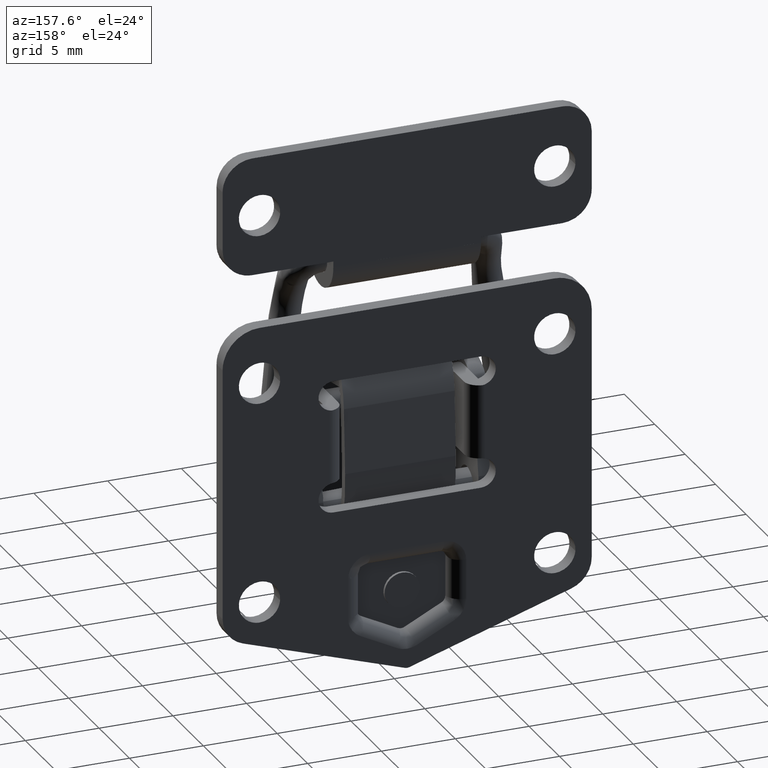
[diagram: clean part render]
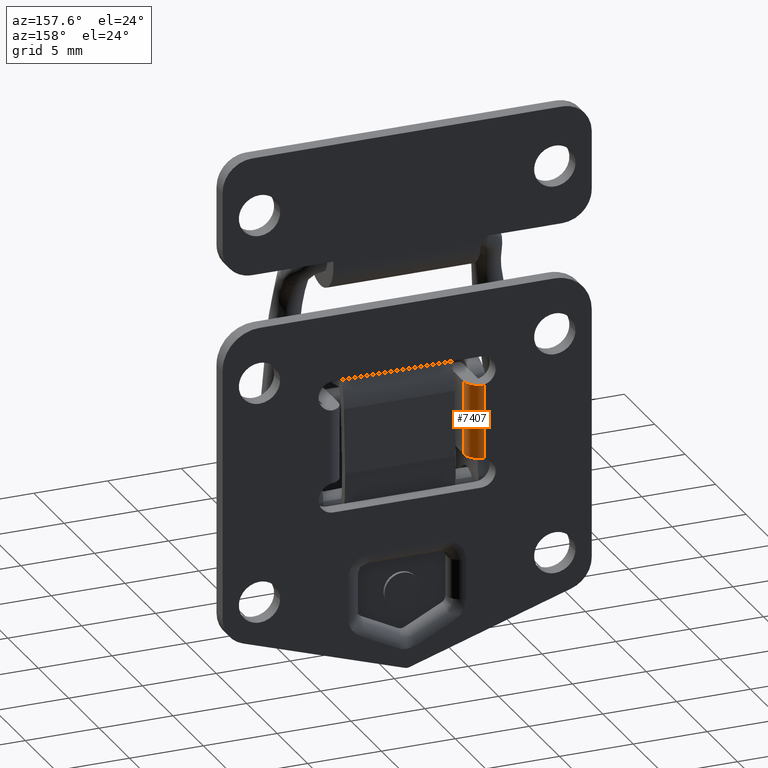
[diagram: same view with one face highlighted and labeled with its STEP entity id]
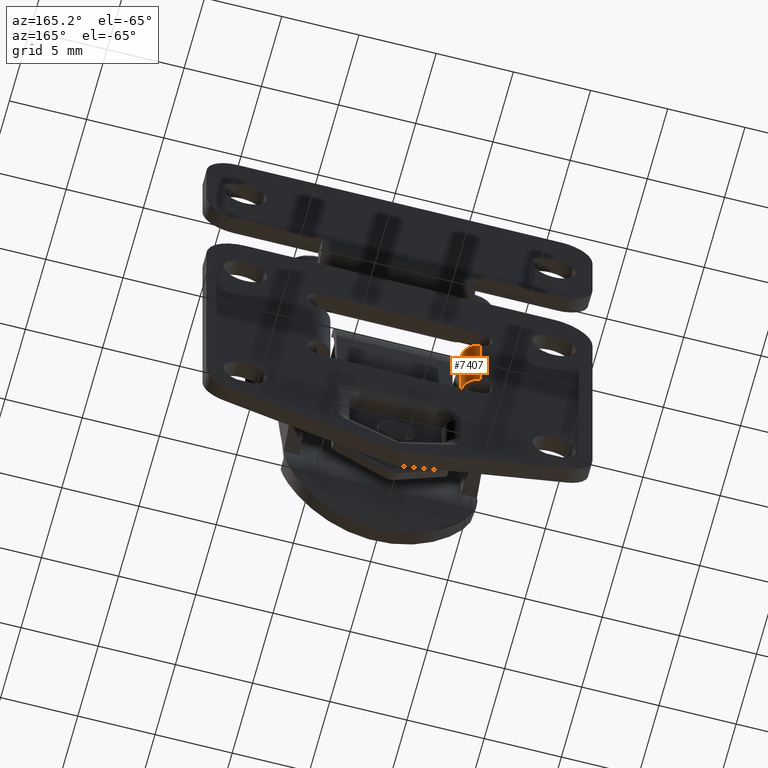
[diagram: same view with one face highlighted and labeled with its STEP entity id]
A machine part, auxiliary view. The second image highlights one B-rep face of the part: STEP entity #7407.
A second angle (auxiliary view) of the same face is appended — the face is thin or edge-on in the first view.
In plain terms, the highlighted face is a freeform B-spline surface patch.
Its self-contained STEP definition (entity closure, byte-faithful):
#7329=CARTESIAN_POINT('',(1.073823051692227,4.250342675024443,-9.541658128379483));
#7330=CARTESIAN_POINT('',(1.073823051692227,4.250342675024443,-14.861506564324859));
#7331=CARTESIAN_POINT('',(2.174984799326511,4.221507739865904,-9.541658128379485));
#7332=CARTESIAN_POINT('',(2.174984799326511,4.221507739865904,-14.861506564324857));
#7333=CARTESIAN_POINT('',(2.097524479458983,5.320320074518463,-9.541658128379483));
#7334=CARTESIAN_POINT('',(2.097524479458983,5.320320074518463,-14.861506564324857));
#7342=(BOUNDED_SURFACE()B_SPLINE_SURFACE(1,2,((#7329,#7331,#7333),(#7330,#7332,#7334)),.UNSPECIFIED.,.F.,.F.,.U.)B_SPLINE_SURFACE_WITH_KNOTS((2,2),(3,3),(0.0,5.319848435945374),(0.0,0.994518631589878),.UNSPECIFIED.)GEOMETRIC_REPRESENTATION_ITEM()RATIONAL_B_SPLINE_SURFACE(((1.0,0.670944223401039,0.996392648121965),(1.0,0.670944223401039,0.996392648121965)))REPRESENTATION_ITEM('')SURFACE());
#7343=CARTESIAN_POINT('',(2.100000000000100,5.250000000000000,-14.731754163448141));
#7344=VERTEX_POINT('',#7343);
#7345=CARTESIAN_POINT('',(2.068245836551965,5.000000000000060,-14.699999999999999));
#7346=VERTEX_POINT('',#7345);
#7347=CARTESIAN_POINT('',(2.100000000000110,5.250000000000000,-14.731754163448141));
#7348=CARTESIAN_POINT('',(2.100000000000110,5.166709358102785,-14.710248612183960));
#7349=CARTESIAN_POINT('',(2.089751387816154,5.083290641897276,-14.699999999999999));
#7350=CARTESIAN_POINT('',(2.068245836551970,5.000000000000060,-14.699999999999999));
#7351=QUASI_UNIFORM_CURVE('',3,(#7347,#7348,#7349,#7350),.UNSPECIFIED.,.F.,.U.);
#7352=EDGE_CURVE('',#7344,#7346,#7351,.T.);
#7353=ORIENTED_EDGE('',*,*,#7352,.F.);
#7354=CARTESIAN_POINT('',(2.100000000000100,5.250000000000000,-9.668245836551890));
#7355=VERTEX_POINT('',#7354);
#7356=CARTESIAN_POINT('',(2.100000000000100,5.250000000000000,-9.668245836551890));
#7357=CARTESIAN_POINT('',(2.100000000000100,5.250000000000000,-14.731754163448141));
#7358=QUASI_UNIFORM_CURVE('',1,(#7356,#7357),.UNSPECIFIED.,.F.,.U.);
#7359=EDGE_CURVE('',#7355,#7344,#7358,.T.);
#7360=ORIENTED_EDGE('',*,*,#7359,.F.);
#7361=CARTESIAN_POINT('',(2.068245836551965,5.000000000000060,-9.700000000000001));
#7362=VERTEX_POINT('',#7361);
#7363=CARTESIAN_POINT('',(2.068245836551970,5.000000000000060,-9.700000000000001));
#7364=CARTESIAN_POINT('',(2.089751387816153,5.083290641897273,-9.700000000000001));
#7365=CARTESIAN_POINT('',(2.100000000000100,5.166709358102786,-9.689751387816072));
#7366=CARTESIAN_POINT('',(2.100000000000100,5.250000000000000,-9.668245836551890));
#7367=QUASI_UNIFORM_CURVE('',3,(#7363,#7364,#7365,#7366),.UNSPECIFIED.,.F.,.U.);
#7368=EDGE_CURVE('',#7362,#7355,#7367,.T.);
#7369=ORIENTED_EDGE('',*,*,#7368,.F.);
#7370=CARTESIAN_POINT('',(1.100000000000100,4.250000000000000,-9.700000000000001));
#7371=VERTEX_POINT('',#7370);
#7372=CARTESIAN_POINT('',(1.100000000000100,4.250000000000000,-9.700000000000001));
#7373=CARTESIAN_POINT('',(1.874596669241631,4.250000000000000,-9.700000000000001));
#7374=CARTESIAN_POINT('',(2.068245836551970,5.000000000000059,-9.700000000000001));
#7382=(BOUNDED_CURVE()B_SPLINE_CURVE(2,(#7372,#7373,#7374),.UNSPECIFIED.,.F.,.U.)CURVE()GEOMETRIC_REPRESENTATION_ITEM()QUASI_UNIFORM_CURVE()RATIONAL_B_SPLINE_CURVE((1.0,0.790569415042076,1.0))REPRESENTATION_ITEM(''));
#7383=EDGE_CURVE('',#7371,#7362,#7382,.T.);
#7384=ORIENTED_EDGE('',*,*,#7383,.F.);
#7385=CARTESIAN_POINT('',(1.100000000000100,4.250000000000000,-14.699999999999999));
#7386=VERTEX_POINT('',#7385);
#7387=CARTESIAN_POINT('',(1.100000000000100,4.250000000000000,-14.699999999999999));
#7388=CARTESIAN_POINT('',(1.100000000000100,4.250000000000000,-9.700000000000001));
#7389=QUASI_UNIFORM_CURVE('',1,(#7387,#7388),.UNSPECIFIED.,.F.,.U.);
#7390=EDGE_CURVE('',#7386,#7371,#7389,.T.);
#7391=ORIENTED_EDGE('',*,*,#7390,.F.);
#7392=CARTESIAN_POINT('',(2.068245836551970,5.000000000000060,-14.699999999999999));
#7393=CARTESIAN_POINT('',(1.874596669241633,4.250000000000001,-14.699999999999998));
#7394=CARTESIAN_POINT('',(1.100000000000100,4.250000000000000,-14.699999999999999));
#7402=(BOUNDED_CURVE()B_SPLINE_CURVE(2,(#7392,#7393,#7394),.UNSPECIFIED.,.F.,.U.)CURVE()GEOMETRIC_REPRESENTATION_ITEM()QUASI_UNIFORM_CURVE()RATIONAL_B_SPLINE_CURVE((1.0,0.790569415042076,1.0))REPRESENTATION_ITEM(''));
#7403=EDGE_CURVE('',#7346,#7386,#7402,.T.);
#7404=ORIENTED_EDGE('',*,*,#7403,.F.);
#7405=EDGE_LOOP('',(#7353,#7360,#7369,#7384,#7391,#7404));
#7406=FACE_OUTER_BOUND('',#7405,.T.);
#7407=ADVANCED_FACE('',(#7406),#7342,.T.);